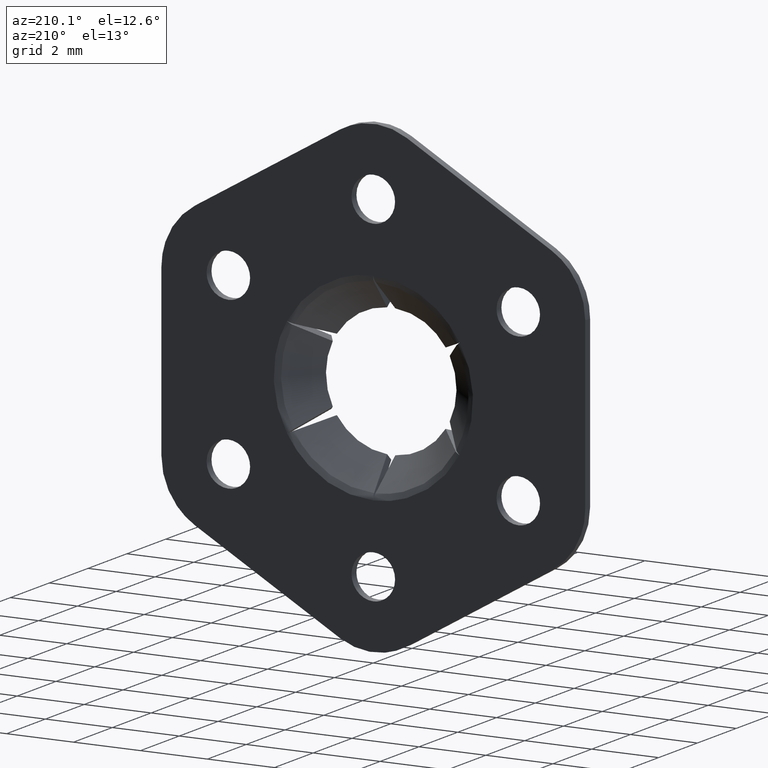
[diagram: clean part render]
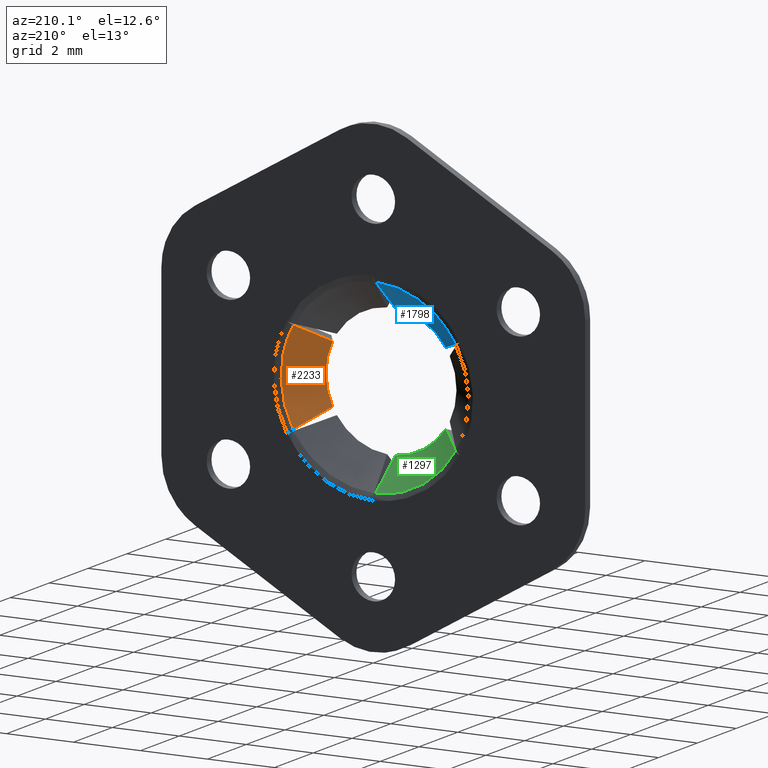
[diagram: same view with three faces highlighted in distinct colors, each labeled with its STEP entity id]
A machine part, auxiliary view with three faces highlighted in distinct colors.
Their STEP definitions:

[orange] entity #2233 — the highlighted face is a freeform B-spline surface patch.
#1574=CARTESIAN_POINT('',(1.745952444454090,-0.923223304703155,-0.868418137648495));
#1575=VERTEX_POINT('',#1574);
#1581=CARTESIAN_POINT('',(2.435178992863380,-0.073223304703792,-1.381992501000784));
#1582=VERTEX_POINT('',#1581);
#1583=CARTESIAN_POINT('',(1.745952444454090,-0.923223304703155,-0.868418137648495));
#1584=CARTESIAN_POINT('',(1.976254237053026,-0.640595681974713,-1.040026583065924));
#1585=CARTESIAN_POINT('',(2.205824934507519,-0.357046092546790,-1.211090255905604));
#1586=CARTESIAN_POINT('',(2.435178992863379,-0.073223304703792,-1.381992501000786));
#1587=QUASI_UNIFORM_CURVE('',3,(#1583,#1584,#1585,#1586),.UNSPECIFIED.,.F.,.U.);
#1588=EDGE_CURVE('',#1575,#1582,#1587,.T.);
#2181=CARTESIAN_POINT('',(1.636648464033485,-0.944473304703626,-1.020518675853823));
#2182=CARTESIAN_POINT('',(2.394433673947387,-0.051442054703796,-1.493029404942879));
#2183=CARTESIAN_POINT('',(2.278488431581098,-0.944473304703626,0.008826912714877));
#2184=CARTESIAN_POINT('',(3.333452201966400,-0.051442054703796,0.012913864831674));
#2185=CARTESIAN_POINT('',(1.628692435489459,-0.944473304703626,1.033168676049086));
#2186=CARTESIAN_POINT('',(2.382793921688216,-0.051442054703796,1.511536486401490));
#2194=(BOUNDED_SURFACE()B_SPLINE_SURFACE(1,2,((#2181,#2183,#2185),(#2182,#2184,#2186)),.UNSPECIFIED.,.F.,.F.,.U.)B_SPLINE_SURFACE_WITH_KNOTS((2,2),(3,3),(0.0,1.0),(0.0,3.254361957415886),.UNSPECIFIED.)GEOMETRIC_REPRESENTATION_ITEM()RATIONAL_B_SPLINE_SURFACE(((1.0,0.845081479571881,0.996656408319761),(1.0,0.845081479571881,0.996656408319761)))REPRESENTATION_ITEM('')SURFACE());
#2195=CARTESIAN_POINT('',(2.435178992863425,-0.073223304703792,1.381992501000702));
#2196=VERTEX_POINT('',#2195);
#2197=CARTESIAN_POINT('',(1.745952444454090,-0.923223304703180,0.868418137648405));
#2198=VERTEX_POINT('',#2197);
#2199=CARTESIAN_POINT('',(2.435178992863425,-0.073223304703792,1.381992501000703));
#2200=CARTESIAN_POINT('',(2.205824934507567,-0.357046092546800,1.211090255905496));
#2201=CARTESIAN_POINT('',(1.976254237053076,-0.640595681974731,1.040026583065792));
#2202=CARTESIAN_POINT('',(1.745952444454090,-0.923223304703179,0.868418137648404));
#2203=QUASI_UNIFORM_CURVE('',3,(#2199,#2200,#2201,#2202),.UNSPECIFIED.,.F.,.U.);
#2204=EDGE_CURVE('',#2196,#2198,#2203,.T.);
#2205=ORIENTED_EDGE('',*,*,#2204,.F.);
#2206=CARTESIAN_POINT('',(2.435178992863380,-0.073223304703792,-1.381992501000784));
#2207=CARTESIAN_POINT('',(2.502062555424951,-0.073223304703792,-1.264151076339607));
#2208=CARTESIAN_POINT('',(2.615433797042202,-0.073223304703792,-1.025549378474334));
#2209=CARTESIAN_POINT('',(2.723312550289144,-0.073223304703792,-0.679807374690100));
#2210=CARTESIAN_POINT('',(2.787252104213069,-0.073223304703792,-0.331334447855052));
#2211=CARTESIAN_POINT('',(2.812366453630301,-0.073223304703792,0.082907723468805));
#2212=CARTESIAN_POINT('',(2.761392179596232,-0.073223304703792,0.549225415476284));
#2213=CARTESIAN_POINT('',(2.625152085589234,-0.073223304703791,1.005098393957365));
#2214=CARTESIAN_POINT('',(2.502062226644255,-0.073223304703793,1.264151082470721));
#2215=CARTESIAN_POINT('',(2.435178992863425,-0.073223304703792,1.381992501000702));
#2216=B_SPLINE_CURVE_WITH_KNOTS('',3,(#2206,#2207,#2208,#2209,#2210,#2211,#2212,#2213,#2214,#2215),.UNSPECIFIED.,.F.,.U.,(4,1,1,1,1,1,1,4),(3.744142E-009,0.406497687056054,0.790416045115343,1.083999065134604,1.467912203852556,2.032496887670586,2.484165117379103,2.890662832974117),.UNSPECIFIED.);
#2217=EDGE_CURVE('',#1582,#2196,#2216,.T.);
#2218=ORIENTED_EDGE('',*,*,#2217,.F.);
#2219=ORIENTED_EDGE('',*,*,#1588,.F.);
#2220=CARTESIAN_POINT('',(1.745952444454090,-0.923223304703155,-0.868418137648495));
#2221=CARTESIAN_POINT('',(1.816966525706385,-0.923223304703318,-0.725727700093995));
#2222=CARTESIAN_POINT('',(1.906419668556373,-0.923223304703523,-0.471817182098736));
#2223=CARTESIAN_POINT('',(1.960228755406190,-0.923223304703652,-0.070877585722911));
#2224=CARTESIAN_POINT('',(1.941890948153315,-0.923223304703615,0.267985655260969));
#2225=CARTESIAN_POINT('',(1.865538885294907,-0.923223304703447,0.592828517676291));
#2226=CARTESIAN_POINT('',(1.791886816286878,-0.923223304703283,0.776083622032312));
#2227=CARTESIAN_POINT('',(1.745952444454090,-0.923223304703180,0.868418137648405));
#2228=B_SPLINE_CURVE_WITH_KNOTS('',3,(#2220,#2221,#2222,#2223,#2224,#2225,#2226,#2227),.UNSPECIFIED.,.F.,.U.,(4,1,1,1,1,4),(4.081205E-009,0.478145323611849,0.801598783832461,1.209424730333988,1.490689002421746,1.800075820476738),.UNSPECIFIED.);
#2229=EDGE_CURVE('',#1575,#2198,#2228,.T.);
#2230=ORIENTED_EDGE('',*,*,#2229,.T.);
#2231=EDGE_LOOP('',(#2205,#2218,#2219,#2230));
#2232=FACE_OUTER_BOUND('',#2231,.T.);
#2233=ADVANCED_FACE('',(#2232),#2194,.F.);

[blue] entity #1798 — the highlighted face is a freeform B-spline surface patch.
#1737=CARTESIAN_POINT('',(0.065470866308971,-0.944473304703883,1.927638484844440));
#1738=CARTESIAN_POINT('',(0.095784556303792,-0.051442054703789,2.820155091786795));
#1739=CARTESIAN_POINT('',(-1.146888546438615,-0.944473304703883,1.968815407620405));
#1740=CARTESIAN_POINT('',(-1.677909835988688,-0.051442054703789,2.880397356788120));
#1741=CARTESIAN_POINT('',(-1.709096537597413,-0.944473304703883,0.893904686060629));
#1742=CARTESIAN_POINT('',(-2.500425956814974,-0.051442054703790,1.307791824964213));
#1750=(BOUNDED_SURFACE()B_SPLINE_SURFACE(1,2,((#1737,#1739,#1741),(#1738,#1740,#1742)),.UNSPECIFIED.,.F.,.F.,.U.)B_SPLINE_SURFACE_WITH_KNOTS((2,2),(3,3),(0.0,1.0),(0.0,3.254361957415894),.UNSPECIFIED.)GEOMETRIC_REPRESENTATION_ITEM()RATIONAL_B_SPLINE_SURFACE(((1.0,0.845081479571881,0.996656408319761),(1.0,0.845081479571881,0.996656408319761)))REPRESENTATION_ITEM('')SURFACE());
#1751=CARTESIAN_POINT('',(-2.414430110137950,-0.073223304703792,1.417930620081516));
#1752=VERTEX_POINT('',#1751);
#1753=CARTESIAN_POINT('',(-1.625048390537800,-0.923223304703180,1.077830101872506));
#1754=VERTEX_POINT('',#1753);
#1755=CARTESIAN_POINT('',(-2.414430110137949,-0.073223304703792,1.417930620081518));
#1756=CARTESIAN_POINT('',(-2.151747395143784,-0.357046092546797,1.304755301631886));
#1757=CARTESIAN_POINT('',(-1.888816560072691,-0.640595681974725,1.191473082091633));
#1758=CARTESIAN_POINT('',(-1.625048390537792,-0.923223304703172,1.077830101872505));
#1759=QUASI_UNIFORM_CURVE('',3,(#1755,#1756,#1757,#1758),.UNSPECIFIED.,.F.,.U.);
#1760=EDGE_CURVE('',#1752,#1754,#1759,.T.);
#1761=ORIENTED_EDGE('',*,*,#1760,.F.);
#1762=CARTESIAN_POINT('',(-0.020748882725489,-0.073223304703792,2.799923121082285));
#1763=VERTEX_POINT('',#1762);
#1764=CARTESIAN_POINT('',(-0.020748882725489,-0.073223304703792,2.799923121082285));
#1765=CARTESIAN_POINT('',(-0.254111429511417,-0.073223304703792,2.798262359659979));
#1766=CARTESIAN_POINT('',(-0.615058822516265,-0.073223304703792,2.750066102450400));
#1767=CARTESIAN_POINT('',(-1.101128482308180,-0.073223304703792,2.585740268860020));
#1768=CARTESIAN_POINT('',(-1.423466449860589,-0.073223304703792,2.419883408891490));
#1769=CARTESIAN_POINT('',(-1.728151416508927,-0.073223304703792,2.211334096704449));
#1770=CARTESIAN_POINT('',(-2.069474151665697,-0.073223304703792,1.913707650559138));
#1771=CARTESIAN_POINT('',(-2.296306629325142,-0.073223304703792,1.619194401665393));
#1772=CARTESIAN_POINT('',(-2.414430110137950,-0.073223304703792,1.417930620081516));
#1773=B_SPLINE_CURVE_WITH_KNOTS('',3,(#1764,#1765,#1766,#1767,#1768,#1769,#1770,#1771,#1772),.UNSPECIFIED.,.F.,.U.,(4,1,1,1,1,1,4),(3.745071E-009,0.700082347376049,1.083999065135202,1.535661537686037,1.784079233715718,2.190580495145847,2.890662832974116),.UNSPECIFIED.);
#1774=EDGE_CURVE('',#1763,#1752,#1773,.T.);
#1775=ORIENTED_EDGE('',*,*,#1774,.F.);
#1776=CARTESIAN_POINT('',(-0.120904053916382,-0.923223304703800,1.946248239520360));
#1777=VERTEX_POINT('',#1776);
#1778=CARTESIAN_POINT('',(-0.120904053916382,-0.923223304703800,1.946248239520360));
#1779=CARTESIAN_POINT('',(-0.087437676980446,-0.640595681975145,2.231499665157080));
#1780=CARTESIAN_POINT('',(-0.054077539363820,-0.357046092547006,2.515845557537241));
#1781=CARTESIAN_POINT('',(-0.020748882725488,-0.073223304703791,2.799923121082284));
#1782=QUASI_UNIFORM_CURVE('',3,(#1778,#1779,#1780,#1781),.UNSPECIFIED.,.F.,.U.);
#1783=EDGE_CURVE('',#1777,#1763,#1782,.T.);
#1784=ORIENTED_EDGE('',*,*,#1783,.F.);
#1785=CARTESIAN_POINT('',(-0.120904053916382,-0.923223304703800,1.946248239520360));
#1786=CARTESIAN_POINT('',(-0.265946893985671,-0.923223304703854,1.937266448152039));
#1787=CARTESIAN_POINT('',(-0.540049483627174,-0.923223304703902,1.889089597099152));
#1788=CARTESIAN_POINT('',(-0.871708032456584,-0.923223304703856,1.754089763827886));
#1789=CARTESIAN_POINT('',(-1.124124311138150,-0.923223304703733,1.599713321118029));
#1790=CARTESIAN_POINT('',(-1.377174593483497,-0.923223304703549,1.397160478669391));
#1791=CARTESIAN_POINT('',(-1.536988403380129,-0.923223304703337,1.210681503390606));
#1792=CARTESIAN_POINT('',(-1.625048390537800,-0.923223304703180,1.077830101872506));
#1793=B_SPLINE_CURVE_WITH_KNOTS('',3,(#1785,#1786,#1787,#1788,#1789,#1790,#1791,#1792),.UNSPECIFIED.,.F.,.U.,(4,1,1,1,1,4),(4.081258E-009,0.435955797330989,0.829723278730583,1.068792802273614,1.321930500945942,1.800075820476494),.UNSPECIFIED.);
#1794=EDGE_CURVE('',#1777,#1754,#1793,.T.);
#1795=ORIENTED_EDGE('',*,*,#1794,.T.);
#1796=EDGE_LOOP('',(#1761,#1775,#1784,#1795));
#1797=FACE_OUTER_BOUND('',#1796,.T.);
#1798=ADVANCED_FACE('',(#1797),#1750,.F.);

[green] entity #1297 — the highlighted face is a freeform B-spline surface patch.
#1234=CARTESIAN_POINT('',(-1.702119330342619,-0.944473304703626,-0.907119808990852));
#1235=CARTESIAN_POINT('',(-2.490218230251403,-0.051442054703796,-1.327125686843878));
#1236=CARTESIAN_POINT('',(-1.131599885142498,-0.944473304703626,-1.977642320335621));
#1237=CARTESIAN_POINT('',(-1.655542365977961,-0.051442054703796,-2.893311221619898));
#1238=CARTESIAN_POINT('',(0.080404102108095,-0.944473304703626,-1.927073362109963));
#1239=CARTESIAN_POINT('',(0.117632035126627,-0.051442054703796,-2.819328311365890));
#1247=(BOUNDED_SURFACE()B_SPLINE_SURFACE(1,2,((#1234,#1236,#1238),(#1235,#1237,#1239)),.UNSPECIFIED.,.F.,.F.,.U.)B_SPLINE_SURFACE_WITH_KNOTS((2,2),(3,3),(0.0,1.0),(0.0,3.254361957415888),.UNSPECIFIED.)GEOMETRIC_REPRESENTATION_ITEM()RATIONAL_B_SPLINE_SURFACE(((1.0,0.845081479571881,0.996656408319761),(1.0,0.845081479571881,0.996656408319761)))REPRESENTATION_ITEM('')SURFACE());
#1248=CARTESIAN_POINT('',(-0.020748882725474,-0.073223304703792,-2.799923121082285));
#1249=VERTEX_POINT('',#1248);
#1250=CARTESIAN_POINT('',(-0.120904053916291,-0.923223304703180,-1.946248239521085));
#1251=VERTEX_POINT('',#1250);
#1252=CARTESIAN_POINT('',(-0.020748882725474,-0.073223304703791,-2.799923121082284));
#1253=CARTESIAN_POINT('',(-0.054077539363782,-0.357046092546782,-2.515845557537466));
#1254=CARTESIAN_POINT('',(-0.087437676980384,-0.640595681974697,-2.231499665157530));
#1255=CARTESIAN_POINT('',(-0.120904053916297,-0.923223304703130,-1.946248239521036));
#1256=QUASI_UNIFORM_CURVE('',3,(#1252,#1253,#1254,#1255),.UNSPECIFIED.,.F.,.U.);
#1257=EDGE_CURVE('',#1249,#1251,#1256,.T.);
#1258=ORIENTED_EDGE('',*,*,#1257,.F.);
#1259=CARTESIAN_POINT('',(-2.414430110137910,-0.073223304703792,-1.417930620081582));
#1260=VERTEX_POINT('',#1259);
#1261=CARTESIAN_POINT('',(-2.414430110137910,-0.073223304703792,-1.417930620081582));
#1262=CARTESIAN_POINT('',(-2.345818787571754,-0.073223304703791,-1.534774706632039));
#1263=CARTESIAN_POINT('',(-2.187298979985088,-0.073223304703792,-1.764683509327922));
#1264=CARTESIAN_POINT('',(-1.887927015177314,-0.073223304703792,-2.084256964846942));
#1265=CARTESIAN_POINT('',(-1.552841251089302,-0.073223304703792,-2.342528026527281));
#1266=CARTESIAN_POINT('',(-1.183642775475918,-0.073223304703792,-2.547814372760212));
#1267=CARTESIAN_POINT('',(-0.845294694180245,-0.073223304703793,-2.677616692672816));
#1268=CARTESIAN_POINT('',(-0.449639938896296,-0.073223304703790,-2.773297459839976));
#1269=CARTESIAN_POINT('',(-0.186355871783406,-0.073223304703793,-2.798711431093336));
#1270=CARTESIAN_POINT('',(-0.020748882725474,-0.073223304703792,-2.799923121082285));
#1271=B_SPLINE_CURVE_WITH_KNOTS('',3,(#1261,#1262,#1263,#1264,#1265,#1266,#1267,#1268,#1269,#1270),.UNSPECIFIED.,.F.,.U.,(4,1,1,1,1,1,1,4),(3.744068E-009,0.406497687055988,0.835582328554838,1.309832714568518,1.671162677628411,2.100246791839199,2.393830616080785,2.890662832974059),.UNSPECIFIED.);
#1272=EDGE_CURVE('',#1260,#1249,#1271,.T.);
#1273=ORIENTED_EDGE('',*,*,#1272,.F.);
#1274=CARTESIAN_POINT('',(-1.625048390537825,-0.923223304703155,-1.077830101872518));
#1275=VERTEX_POINT('',#1274);
#1276=CARTESIAN_POINT('',(-1.625048390537825,-0.923223304703155,-1.077830101872518));
#1277=CARTESIAN_POINT('',(-1.888816560072676,-0.640595681974705,-1.191473082091694));
#1278=CARTESIAN_POINT('',(-2.151747395143757,-0.357046092546786,-1.304755301631948));
#1279=CARTESIAN_POINT('',(-2.414430110137911,-0.073223304703792,-1.417930620081583));
#1280=QUASI_UNIFORM_CURVE('',3,(#1276,#1277,#1278,#1279),.UNSPECIFIED.,.F.,.U.);
#1281=EDGE_CURVE('',#1275,#1260,#1280,.T.);
#1282=ORIENTED_EDGE('',*,*,#1281,.F.);
#1283=CARTESIAN_POINT('',(-1.625048390537825,-0.923223304703155,-1.077830101872518));
#1284=CARTESIAN_POINT('',(-1.555101986789681,-0.923223304703284,-1.183315379092106));
#1285=CARTESIAN_POINT('',(-1.433210251530349,-0.923223304703443,-1.333088665499278));
#1286=CARTESIAN_POINT('',(-1.228695872361552,-0.923223304703581,-1.519804505728312));
#1287=CARTESIAN_POINT('',(-1.041970093429983,-0.923223304703639,-1.654401136098336));
#1288=CARTESIAN_POINT('',(-0.794458250032072,-0.923223304703631,-1.789101986634624));
#1289=CARTESIAN_POINT('',(-0.489038342927895,-0.923223304703494,-1.899518554686790));
#1290=CARTESIAN_POINT('',(-0.247229716214723,-0.923223304703308,-1.938414824170782));
#1291=CARTESIAN_POINT('',(-0.120904053916291,-0.923223304703180,-1.946248239521085));
#1292=B_SPLINE_CURVE_WITH_KNOTS('',3,(#1283,#1284,#1285,#1286,#1287,#1288,#1289,#1290,#1291),.UNSPECIFIED.,.F.,.U.,(4,1,1,1,1,1,4),(4.081088E-009,0.379702879736253,0.576586949318004,0.829723278730647,1.068792802273740,1.420372944821669,1.800075820476844),.UNSPECIFIED.);
#1293=EDGE_CURVE('',#1275,#1251,#1292,.T.);
#1294=ORIENTED_EDGE('',*,*,#1293,.T.);
#1295=EDGE_LOOP('',(#1258,#1273,#1282,#1294));
#1296=FACE_OUTER_BOUND('',#1295,.T.);
#1297=ADVANCED_FACE('',(#1296),#1247,.F.);